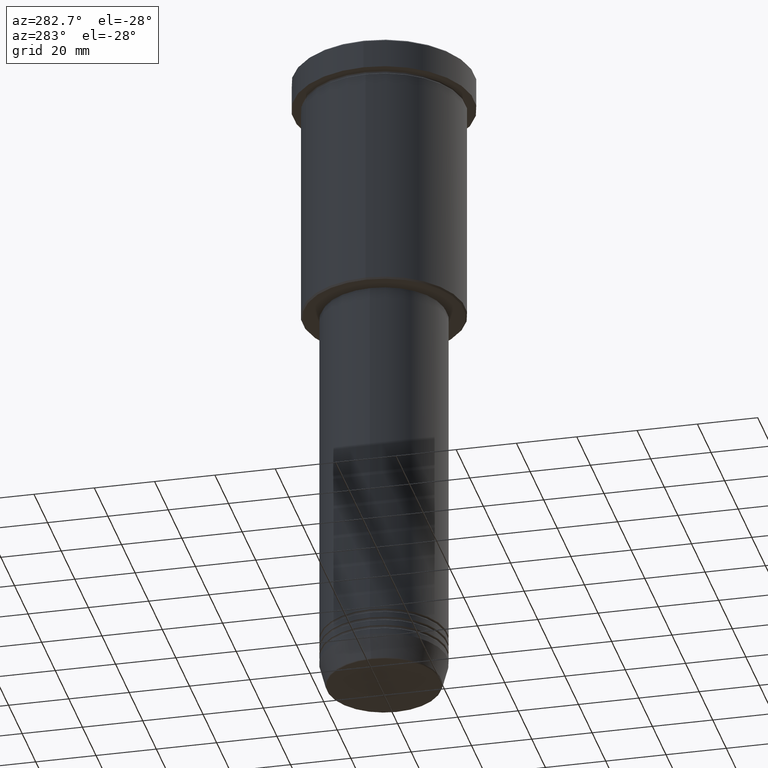
[diagram: clean part render]
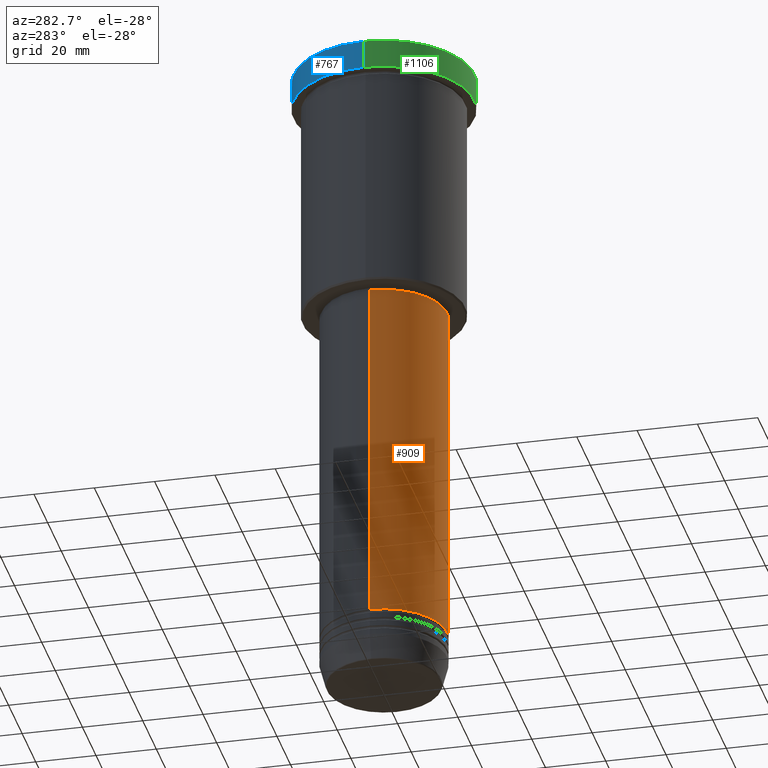
[diagram: same view with three faces highlighted in distinct colors, each labeled with its STEP entity id]
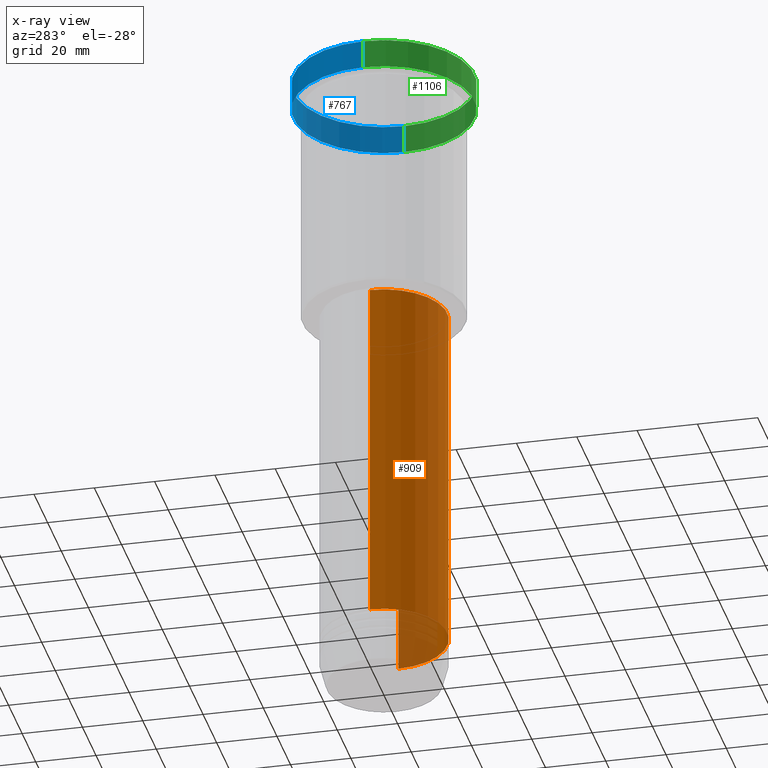
[diagram: x-ray of the same camera — body ghosted, the three highlighted faces saturated]
A machine part, auxiliary view with three faces highlighted in distinct colors.
The next image is the same camera in x-ray (body ghosted, the three faces saturated) — at least one of them is partly hidden behind the body in this view.
Their STEP definitions:

[orange] entity #909 — the highlighted cylindrical surface (partial cylindrical patch) has radius 21 mm, axis along (-0, -0, 1).
#100 = LINE ( 'NONE', #465, #127 ) ;
#127 = VECTOR ( 'NONE', #1079, 1000.000000000000000 ) ;
#144 = EDGE_CURVE ( 'NONE', #560, #159, #1158, .T. ) ;
#158 = VERTEX_POINT ( 'NONE', #812 ) ;
#159 = VERTEX_POINT ( 'NONE', #1167 ) ;
#170 = FACE_OUTER_BOUND ( 'NONE', #1069, .T. ) ;
#180 = EDGE_CURVE ( 'NONE', #525, #158, #684, .T. ) ;
#351 = DIRECTION ( 'NONE',  ( -0.000000000000000000, -0.000000000000000000, 1.000000000000000000 ) ) ;
#362 = EDGE_CURVE ( 'NONE', #158, #159, #100, .T. ) ;
#465 = CARTESIAN_POINT ( 'NONE',  ( 21.00000000000000000, 0.000000000000000000, 0.000000000000000000 ) ) ;
#474 = VECTOR ( 'NONE', #351, 1000.000000000000000 ) ;
#500 = LINE ( 'NONE', #1071, #474 ) ;
#506 = DIRECTION ( 'NONE',  ( 1.000000000000000000, 0.000000000000000000, 0.000000000000000000 ) ) ;
#510 = AXIS2_PLACEMENT_3D ( 'NONE', #1157, #690, #708 ) ;
#513 = CARTESIAN_POINT ( 'NONE',  ( 0.000000000000000000, 0.000000000000000000, -203.9999999999999716 ) ) ;
#525 = VERTEX_POINT ( 'NONE', #559 ) ;
#559 = CARTESIAN_POINT ( 'NONE',  ( -21.00000000000000000, 2.571758278209441661E-15, -203.9999999999999716 ) ) ;
#560 = VERTEX_POINT ( 'NONE', #1026 ) ;
#640 = ORIENTED_EDGE ( 'NONE', *, *, #765, .F. ) ;
#645 = AXIS2_PLACEMENT_3D ( 'NONE', #513, #1073, #506 ) ;
#684 = CIRCLE ( 'NONE', #645, 21.00000000000000000 ) ;
#690 = DIRECTION ( 'NONE',  ( -0.000000000000000000, -0.000000000000000000, 1.000000000000000000 ) ) ;
#708 = DIRECTION ( 'NONE',  ( 1.000000000000000000, 0.000000000000000000, 0.000000000000000000 ) ) ;
#765 = EDGE_CURVE ( 'NONE', #525, #560, #500, .T. ) ;
#782 = DIRECTION ( 'NONE',  ( -0.000000000000000000, -0.000000000000000000, 1.000000000000000000 ) ) ;
#811 = AXIS2_PLACEMENT_3D ( 'NONE', #875, #782, #1159 ) ;
#812 = CARTESIAN_POINT ( 'NONE',  ( 21.00000000000000000, 0.000000000000000000, -203.9999999999999716 ) ) ;
#875 = CARTESIAN_POINT ( 'NONE',  ( 0.000000000000000000, 0.000000000000000000, 0.000000000000000000 ) ) ;
#904 = ORIENTED_EDGE ( 'NONE', *, *, #362, .T. ) ;
#909 = ADVANCED_FACE ( 'NONE', ( #170 ), #986, .T. ) ;
#986 = CYLINDRICAL_SURFACE ( 'NONE', #811, 21.00000000000000000 ) ;
#1021 = ORIENTED_EDGE ( 'NONE', *, *, #180, .T. ) ;
#1026 = CARTESIAN_POINT ( 'NONE',  ( -21.00000000000000000, 2.571758278209441661E-15, -87.00000000000000000 ) ) ;
#1069 = EDGE_LOOP ( 'NONE', ( #640, #1021, #904, #1145 ) ) ;
#1071 = CARTESIAN_POINT ( 'NONE',  ( -21.00000000000000000, 2.571758278209441661E-15, 0.000000000000000000 ) ) ;
#1073 = DIRECTION ( 'NONE',  ( -0.000000000000000000, -0.000000000000000000, 1.000000000000000000 ) ) ;
#1079 = DIRECTION ( 'NONE',  ( -0.000000000000000000, -0.000000000000000000, 1.000000000000000000 ) ) ;
#1145 = ORIENTED_EDGE ( 'NONE', *, *, #144, .F. ) ;
#1157 = CARTESIAN_POINT ( 'NONE',  ( 0.000000000000000000, 0.000000000000000000, -87.00000000000000000 ) ) ;
#1158 = CIRCLE ( 'NONE', #510, 21.00000000000000000 ) ;
#1159 = DIRECTION ( 'NONE',  ( 1.000000000000000000, 0.000000000000000000, 0.000000000000000000 ) ) ;
#1167 = CARTESIAN_POINT ( 'NONE',  ( 21.00000000000000000, 0.000000000000000000, -87.00000000000000000 ) ) ;

[blue] entity #767 — the highlighted cylindrical surface (partial cylindrical patch) has radius 30 mm, axis along (-0, -0, 1).
#35 = DIRECTION ( 'NONE',  ( -0.000000000000000000, -0.000000000000000000, 1.000000000000000000 ) ) ;
#117 = CARTESIAN_POINT ( 'NONE',  ( -30.00000000000000000, 3.673940397442059178E-15, -0.4999999999999796274 ) ) ;
#171 = CIRCLE ( 'NONE', #608, 30.00000000000000000 ) ;
#212 = DIRECTION ( 'NONE',  ( 1.000000000000000000, 0.000000000000000000, 0.000000000000000000 ) ) ;
#231 = CARTESIAN_POINT ( 'NONE',  ( 0.000000000000000000, 0.000000000000000000, -9.999999999999992895 ) ) ;
#259 = CYLINDRICAL_SURFACE ( 'NONE', #1112, 30.00000000000000000 ) ;
#261 = ORIENTED_EDGE ( 'NONE', *, *, #954, .T. ) ;
#283 = DIRECTION ( 'NONE',  ( -0.000000000000000000, -0.000000000000000000, 1.000000000000000000 ) ) ;
#306 = VERTEX_POINT ( 'NONE', #918 ) ;
#316 = ORIENTED_EDGE ( 'NONE', *, *, #621, .T. ) ;
#375 = LINE ( 'NONE', #902, #382 ) ;
#382 = VECTOR ( 'NONE', #283, 1000.000000000000000 ) ;
#434 = CARTESIAN_POINT ( 'NONE',  ( 0.000000000000000000, 0.000000000000000000, -0.4999999999999796274 ) ) ;
#495 = VERTEX_POINT ( 'NONE', #1105 ) ;
#515 = ORIENTED_EDGE ( 'NONE', *, *, #1014, .T. ) ;
#600 = DIRECTION ( 'NONE',  ( 1.000000000000000000, 0.000000000000000000, 0.000000000000000000 ) ) ;
#608 = AXIS2_PLACEMENT_3D ( 'NONE', #434, #1056, #600 ) ;
#609 = CIRCLE ( 'NONE', #788, 30.00000000000000000 ) ;
#620 = DIRECTION ( 'NONE',  ( -0.000000000000000000, -0.000000000000000000, 1.000000000000000000 ) ) ;
#621 = EDGE_CURVE ( 'NONE', #1131, #306, #171, .T. ) ;
#714 = FACE_OUTER_BOUND ( 'NONE', #865, .T. ) ;
#767 = ADVANCED_FACE ( 'NONE', ( #714 ), #259, .T. ) ;
#777 = LINE ( 'NONE', #859, #990 ) ;
#788 = AXIS2_PLACEMENT_3D ( 'NONE', #231, #882, #1075 ) ;
#806 = VERTEX_POINT ( 'NONE', #1025 ) ;
#839 = ORIENTED_EDGE ( 'NONE', *, *, #854, .F. ) ;
#854 = EDGE_CURVE ( 'NONE', #806, #306, #777, .T. ) ;
#859 = CARTESIAN_POINT ( 'NONE',  ( 30.00000000000000000, 0.000000000000000000, 0.000000000000000000 ) ) ;
#865 = EDGE_LOOP ( 'NONE', ( #261, #515, #316, #839 ) ) ;
#882 = DIRECTION ( 'NONE',  ( -0.000000000000000000, -0.000000000000000000, 1.000000000000000000 ) ) ;
#902 = CARTESIAN_POINT ( 'NONE',  ( -30.00000000000000000, 3.673940397442059178E-15, 0.000000000000000000 ) ) ;
#918 = CARTESIAN_POINT ( 'NONE',  ( 30.00000000000000000, 0.000000000000000000, -0.4999999999999796274 ) ) ;
#954 = EDGE_CURVE ( 'NONE', #806, #495, #609, .T. ) ;
#990 = VECTOR ( 'NONE', #35, 1000.000000000000000 ) ;
#1014 = EDGE_CURVE ( 'NONE', #495, #1131, #375, .T. ) ;
#1025 = CARTESIAN_POINT ( 'NONE',  ( 30.00000000000000000, 0.000000000000000000, -9.999999999999992895 ) ) ;
#1056 = DIRECTION ( 'NONE',  ( 0.000000000000000000, 0.000000000000000000, -1.000000000000000000 ) ) ;
#1075 = DIRECTION ( 'NONE',  ( 1.000000000000000000, 0.000000000000000000, 0.000000000000000000 ) ) ;
#1105 = CARTESIAN_POINT ( 'NONE',  ( -30.00000000000000000, 3.673940397442059178E-15, -9.999999999999992895 ) ) ;
#1112 = AXIS2_PLACEMENT_3D ( 'NONE', #1164, #620, #212 ) ;
#1131 = VERTEX_POINT ( 'NONE', #117 ) ;
#1164 = CARTESIAN_POINT ( 'NONE',  ( 0.000000000000000000, 0.000000000000000000, 0.000000000000000000 ) ) ;

[green] entity #1106 — the highlighted cylindrical surface (partial cylindrical patch) has radius 30 mm, axis along (-0, -0, 1).
#35 = DIRECTION ( 'NONE',  ( -0.000000000000000000, -0.000000000000000000, 1.000000000000000000 ) ) ;
#37 = ORIENTED_EDGE ( 'NONE', *, *, #919, .T. ) ;
#49 = ORIENTED_EDGE ( 'NONE', *, *, #161, .T. ) ;
#59 = AXIS2_PLACEMENT_3D ( 'NONE', #1003, #179, #85 ) ;
#66 = DIRECTION ( 'NONE',  ( 1.000000000000000000, 0.000000000000000000, 0.000000000000000000 ) ) ;
#85 = DIRECTION ( 'NONE',  ( 1.000000000000000000, 0.000000000000000000, 0.000000000000000000 ) ) ;
#117 = CARTESIAN_POINT ( 'NONE',  ( -30.00000000000000000, 3.673940397442059178E-15, -0.4999999999999796274 ) ) ;
#120 = ORIENTED_EDGE ( 'NONE', *, *, #1014, .F. ) ;
#161 = EDGE_CURVE ( 'NONE', #495, #806, #200, .T. ) ;
#179 = DIRECTION ( 'NONE',  ( -0.000000000000000000, -0.000000000000000000, 1.000000000000000000 ) ) ;
#200 = CIRCLE ( 'NONE', #1083, 30.00000000000000000 ) ;
#262 = DIRECTION ( 'NONE',  ( 1.000000000000000000, 0.000000000000000000, 0.000000000000000000 ) ) ;
#269 = ORIENTED_EDGE ( 'NONE', *, *, #854, .T. ) ;
#283 = DIRECTION ( 'NONE',  ( -0.000000000000000000, -0.000000000000000000, 1.000000000000000000 ) ) ;
#287 = CIRCLE ( 'NONE', #707, 30.00000000000000000 ) ;
#306 = VERTEX_POINT ( 'NONE', #918 ) ;
#337 = EDGE_LOOP ( 'NONE', ( #120, #49, #269, #37 ) ) ;
#375 = LINE ( 'NONE', #902, #382 ) ;
#382 = VECTOR ( 'NONE', #283, 1000.000000000000000 ) ;
#495 = VERTEX_POINT ( 'NONE', #1105 ) ;
#604 = CARTESIAN_POINT ( 'NONE',  ( 0.000000000000000000, 0.000000000000000000, -0.4999999999999796274 ) ) ;
#630 = FACE_OUTER_BOUND ( 'NONE', #337, .T. ) ;
#707 = AXIS2_PLACEMENT_3D ( 'NONE', #604, #1144, #262 ) ;
#777 = LINE ( 'NONE', #859, #990 ) ;
#780 = DIRECTION ( 'NONE',  ( -0.000000000000000000, -0.000000000000000000, 1.000000000000000000 ) ) ;
#806 = VERTEX_POINT ( 'NONE', #1025 ) ;
#854 = EDGE_CURVE ( 'NONE', #806, #306, #777, .T. ) ;
#859 = CARTESIAN_POINT ( 'NONE',  ( 30.00000000000000000, 0.000000000000000000, 0.000000000000000000 ) ) ;
#902 = CARTESIAN_POINT ( 'NONE',  ( -30.00000000000000000, 3.673940397442059178E-15, 0.000000000000000000 ) ) ;
#918 = CARTESIAN_POINT ( 'NONE',  ( 30.00000000000000000, 0.000000000000000000, -0.4999999999999796274 ) ) ;
#919 = EDGE_CURVE ( 'NONE', #306, #1131, #287, .T. ) ;
#973 = CARTESIAN_POINT ( 'NONE',  ( 0.000000000000000000, 0.000000000000000000, -9.999999999999992895 ) ) ;
#990 = VECTOR ( 'NONE', #35, 1000.000000000000000 ) ;
#993 = CYLINDRICAL_SURFACE ( 'NONE', #59, 30.00000000000000000 ) ;
#1003 = CARTESIAN_POINT ( 'NONE',  ( 0.000000000000000000, 0.000000000000000000, 0.000000000000000000 ) ) ;
#1014 = EDGE_CURVE ( 'NONE', #495, #1131, #375, .T. ) ;
#1025 = CARTESIAN_POINT ( 'NONE',  ( 30.00000000000000000, 0.000000000000000000, -9.999999999999992895 ) ) ;
#1083 = AXIS2_PLACEMENT_3D ( 'NONE', #973, #780, #66 ) ;
#1105 = CARTESIAN_POINT ( 'NONE',  ( -30.00000000000000000, 3.673940397442059178E-15, -9.999999999999992895 ) ) ;
#1106 = ADVANCED_FACE ( 'NONE', ( #630 ), #993, .T. ) ;
#1131 = VERTEX_POINT ( 'NONE', #117 ) ;
#1144 = DIRECTION ( 'NONE',  ( 0.000000000000000000, 0.000000000000000000, -1.000000000000000000 ) ) ;